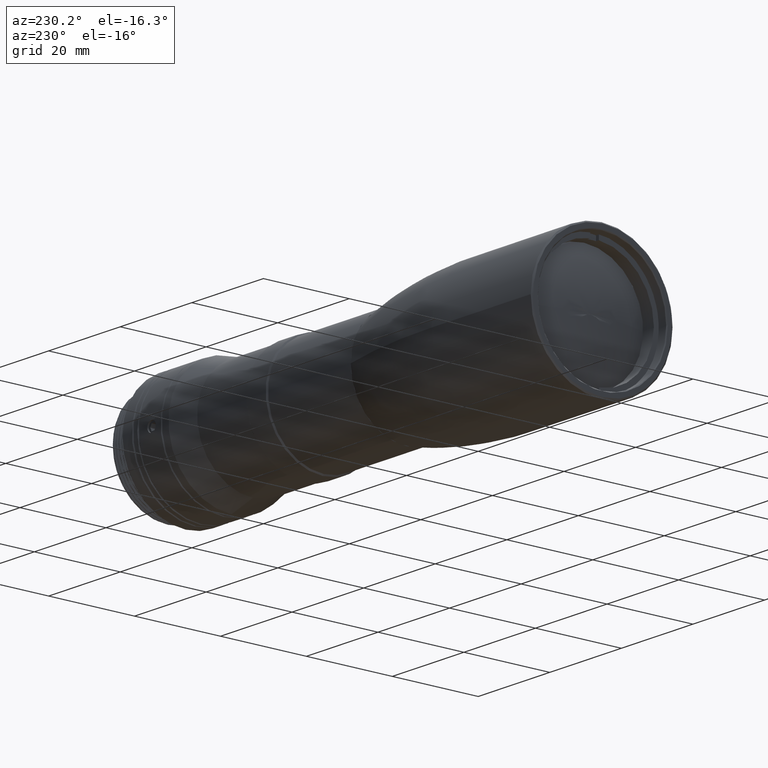
[diagram: clean part render]
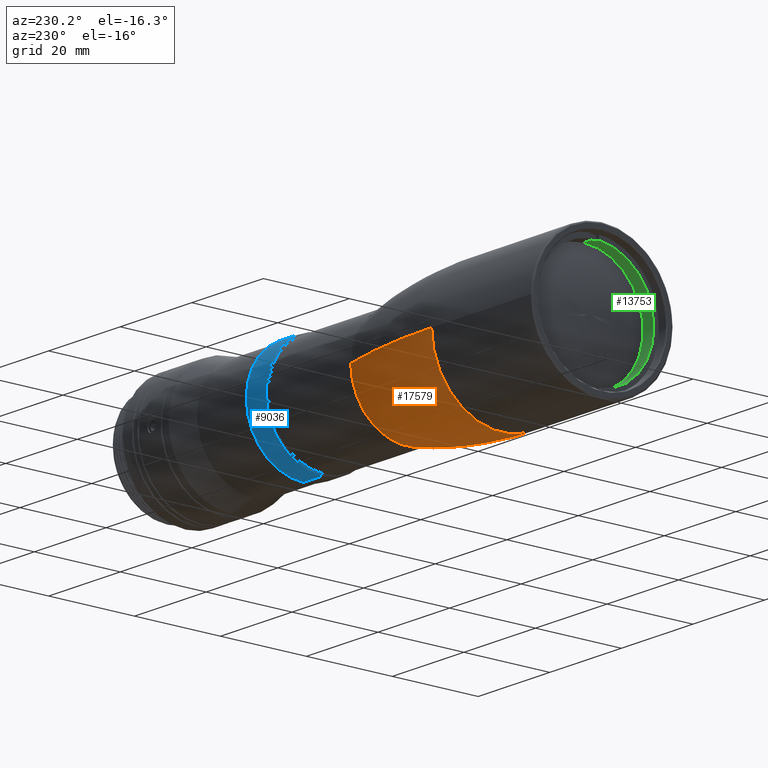
[diagram: same view with three faces highlighted in distinct colors, each labeled with its STEP entity id]
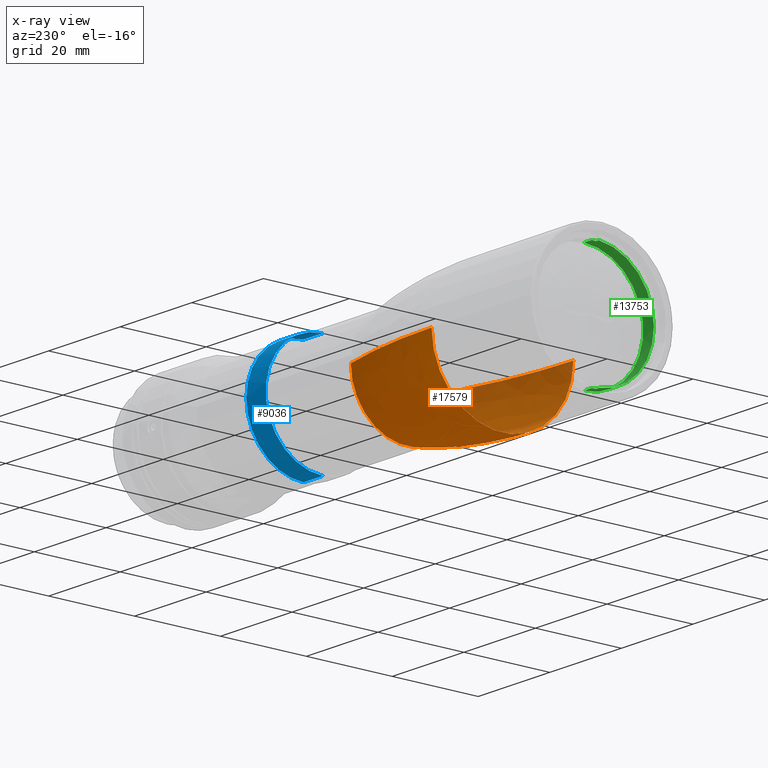
[diagram: x-ray of the same camera — body ghosted, the three highlighted faces saturated]
A machine part, auxiliary view with three faces highlighted in distinct colors.
The next image is the same camera in x-ray (body ghosted, the three faces saturated) — at least one of them is partly hidden behind the body in this view.
Their STEP definitions:

[orange] entity #17579 — the highlighted face is a freeform B-spline surface patch.
#745 = CIRCLE ( 'NONE', #16235, 12.99999999998295763 ) ;
#1101 = CARTESIAN_POINT ( 'NONE',  ( -17.73994872612158247, 7.418881607924976526E-05, -16.49999999981036680 ) ) ;
#1295 = AXIS2_PLACEMENT_3D ( 'NONE', #12156, #4920, #9211 ) ;
#1375 = CARTESIAN_POINT ( 'NONE',  ( 1.564449548753233078E-11, 12.99768836372662939, 0.2451473004023941027 ) ) ;
#1574 =( BOUNDED_SURFACE ( )  B_SPLINE_SURFACE ( 3, 3, ( 
 ( #9859, #14124, #2520, #12712, #11194, #14298, #12624 ),
 ( #8347, #15638, #18523, #1101, #11274, #8440, #5565 ),
 ( #14213, #18710, #2791, #12790, #12977, #4139, #5669 ),
 ( #9954, #4232, #3867, #15728, #2706, #8525, #1375 ) ),
 .UNSPECIFIED., .F., .F., .F. ) 
 B_SPLINE_SURFACE_WITH_KNOTS ( ( 4, 4 ),
 ( 4, 3, 4 ),
 ( 0.01928601221986778191, 0.9807118293951125887 ),
 ( 0.000000000000000000, 0.5000000000000000000, 1.000000000000000000 ),
 .UNSPECIFIED. ) 
 GEOMETRIC_REPRESENTATION_ITEM ( )  RATIONAL_B_SPLINE_SURFACE ( (
 ( 0.9996555249964316214, 0.7999973439067965542, 0.7999973439067965542, 0.9996555249964316214, 0.7999973439067965542, 0.7999973439067965542, 0.9996555249964316214),
 ( 0.9940439575587189935, 0.7955065578979462204, 0.7955065578979462204, 0.9940439575587189935, 0.7955065578979462204, 0.7955065578979462204, 0.9940439575587189935),
 ( 0.9940439449608713396, 0.7955065478162286485, 0.7955065478162286485, 0.9940439449608713396, 0.7955065478162286485, 0.7955065478162286485, 0.9940439449608713396),
 ( 0.9996554872028889926, 0.7999973136616441716, 0.7999973136616441716, 0.9996554872028889926, 0.7999973136616441716, 0.7999973136616441716, 0.9996554872028889926) ) ) 
 REPRESENTATION_ITEM ( '' )  SURFACE ( )  );
#1596 = CARTESIAN_POINT ( 'NONE',  ( -26.80000000002000249, -16.49999999965814013, -7.418881125470027326E-05 ) ) ;
#2520 = CARTESIAN_POINT ( 'NONE',  ( -26.80000000002445404, -9.810519168075346741, -16.50004411110079872 ) ) ;
#2706 = CARTESIAN_POINT ( 'NONE',  ( 1.207124785739666020E-11, 7.729616854188997799, -12.99996524549677268 ) ) ;
#2791 = CARTESIAN_POINT ( 'NONE',  ( -8.756185135891167093, -9.112930196523825188, -15.32678828184456066 ) ) ;
#3244 = DIRECTION ( 'NONE',  ( 0.000000000000000000, 0.000000000000000000, 1.000000000000000000 ) ) ;
#3867 = CARTESIAN_POINT ( 'NONE',  ( 1.207122910543800686E-11, -7.729499950599942437, -13.00003475419824106 ) ) ;
#4139 = CARTESIAN_POINT ( 'NONE',  ( -8.756185135889412052, 15.49587017389182186, -8.822354751262436068 ) ) ;
#4232 = CARTESIAN_POINT ( 'NONE',  ( 1.355956512471134765E-11, -13.14338110025917139, -7.483154839373264977 ) ) ;
#4674 = VERTEX_POINT ( 'NONE', #14380 ) ;
#4920 = DIRECTION ( 'NONE',  ( 2.697324574236714018E-13, -8.992583322630791736E-06, 0.9999999999595668987 ) ) ;
#5565 = CARTESIAN_POINT ( 'NONE',  ( -17.73994872611704210, 16.49706600012329005, 0.3111484966695011178 ) ) ;
#5613 = CARTESIAN_POINT ( 'NONE',  ( 0.000000000000000000, 0.000000000000000000, -9.621682753383029286E-14 ) ) ;
#5642 = AXIS2_PLACEMENT_3D ( 'NONE', #14668, #15901, #6044 ) ;
#5669 = CARTESIAN_POINT ( 'NONE',  ( -8.756185135886953574, 15.32402193308983662, 0.2890239020284853244 ) ) ;
#5709 = DIRECTION ( 'NONE',  ( 1.000000000000000000, 0.000000000000000000, -2.697785781550014780E-13 ) ) ;
#6044 = DIRECTION ( 'NONE',  ( 0.000000000000000000, -0.9999999999595666766, -8.992583580296964070E-06 ) ) ;
#6567 = CIRCLE ( 'NONE', #5642, 104.3557142859954041 ) ;
#6664 = VERTEX_POINT ( 'NONE', #15433 ) ;
#6776 = CARTESIAN_POINT ( 'NONE',  ( -26.79999958350422418, 16.49999999965814368, 7.418880885254002899E-05 ) ) ;
#7773 = AXIS2_PLACEMENT_3D ( 'NONE', #17616, #12085, #3244 ) ;
#8347 = CARTESIAN_POINT ( 'NONE',  ( -17.73994872611703855, -16.49706879748518062, 0.3110001454090028372 ) ) ;
#8440 = CARTESIAN_POINT ( 'NONE',  ( -17.73994872611969242, 16.68206911372453050, -9.497700358530945408 ) ) ;
#8525 = CARTESIAN_POINT ( 'NONE',  ( 1.355959701072054305E-11, 13.14344839262452602, -7.483036646115086121 ) ) ;
#8638 = EDGE_CURVE ( 'NONE', #4674, #6664, #745, .T. ) ;
#9211 = DIRECTION ( 'NONE',  ( 0.000000000000000000, -0.9999999999595666766, -8.992583322630791736E-06 ) ) ;
#9291 = CIRCLE ( 'NONE', #7773, 16.50000000000000000 ) ;
#9529 = EDGE_LOOP ( 'NONE', ( #16086, #10061, #17098, #14890 ) ) ;
#9530 = CIRCLE ( 'NONE', #1295, 104.3557142859954183 ) ;
#9859 = CARTESIAN_POINT ( 'NONE',  ( -26.80000000001992078, -16.49706879748678290, 0.3110001454114778574 ) ) ;
#9954 = CARTESIAN_POINT ( 'NONE',  ( 1.564446395505361514E-11, -12.99769056770872488, 0.2450304175910100746 ) ) ;
#10061 = ORIENTED_EDGE ( 'NONE', *, *, #17990, .T. ) ;
#11194 = CARTESIAN_POINT ( 'NONE',  ( -26.80000000002445404, 9.810667545707504544, -16.49995588851823669 ) ) ;
#11236 = EDGE_CURVE ( 'NONE', #16415, #4674, #6567, .T. ) ;
#11274 = CARTESIAN_POINT ( 'NONE',  ( -17.73994872612157536, 9.810667545706554193, -16.49995588851907868 ) ) ;
#11505 = DIRECTION ( 'NONE',  ( -2.697785781550014780E-13, 0.000000000000000000, -1.000000000000000000 ) ) ;
#12085 = DIRECTION ( 'NONE',  ( 1.000000000000000000, 0.000000000000000000, 0.000000000000000000 ) ) ;
#12156 = CARTESIAN_POINT ( 'NONE',  ( -26.80000000003841976, -87.85571428245970083, -0.0007900498237524424764 ) ) ;
#12624 = CARTESIAN_POINT ( 'NONE',  ( -26.80000000001992433, 16.49706600012489233, 0.3111484966719749168 ) ) ;
#12712 = CARTESIAN_POINT ( 'NONE',  ( -26.80000000002445759, 7.418881607859924396E-05, -16.49999999980951770 ) ) ;
#12790 = CARTESIAN_POINT ( 'NONE',  ( -8.756185135891168869, 6.891352953224933017E-05, -15.32674730714061617 ) ) ;
#12977 = CARTESIAN_POINT ( 'NONE',  ( -8.756185135891167093, 9.113068023582890476, -15.32670633243667524 ) ) ;
#14124 = CARTESIAN_POINT ( 'NONE',  ( -26.80000000002256044, -16.68198370418556920, -9.497850373049313788 ) ) ;
#14213 = CARTESIAN_POINT ( 'NONE',  ( -8.756185135886953574, -15.32402453154188215, 0.2888860994658917214 ) ) ;
#14298 = CARTESIAN_POINT ( 'NONE',  ( -26.80000000002256044, 16.68206911372615053, -9.497700358529424847 ) ) ;
#14380 = CARTESIAN_POINT ( 'NONE',  ( 1.410113344907664357E-11, -12.99999999947375251, -0.0001139606293409103856 ) ) ;
#14668 = CARTESIAN_POINT ( 'NONE',  ( -26.80000000003841265, 87.85571428245967240, 0.0007900498606580297865 ) ) ;
#14890 = ORIENTED_EDGE ( 'NONE', *, *, #8638, .F. ) ;
#15433 = CARTESIAN_POINT ( 'NONE',  ( 1.369529332775632716E-11, 12.99999999947402074, 0.0001139622336825249407 ) ) ;
#15638 = CARTESIAN_POINT ( 'NONE',  ( -17.73994872611968887, -16.68198370418395626, -9.497850373050837902 ) ) ;
#15728 = CARTESIAN_POINT ( 'NONE',  ( 1.207123848141733514E-11, 5.845179452791086379E-05, -12.99999999984750332 ) ) ;
#15862 = EDGE_CURVE ( 'NONE', #6664, #17848, #9530, .T. ) ;
#15901 = DIRECTION ( 'NONE',  ( 2.698431476603618851E-13, -8.992583580296964070E-06, 0.9999999999595668987 ) ) ;
#16086 = ORIENTED_EDGE ( 'NONE', *, *, #11236, .F. ) ;
#16235 = AXIS2_PLACEMENT_3D ( 'NONE', #5613, #5709, #11505 ) ;
#16415 = VERTEX_POINT ( 'NONE', #1596 ) ;
#17098 = ORIENTED_EDGE ( 'NONE', *, *, #15862, .F. ) ;
#17266 = FACE_OUTER_BOUND ( 'NONE', #9529, .T. ) ;
#17579 = ADVANCED_FACE ( 'NONE', ( #17266 ), #1574, .F. ) ;
#17616 = CARTESIAN_POINT ( 'NONE',  ( -26.80000000001999894, 0.000000000000000000, 0.000000000000000000 ) ) ;
#17848 = VERTEX_POINT ( 'NONE', #6776 ) ;
#17990 = EDGE_CURVE ( 'NONE', #16415, #17848, #9291, .T. ) ;
#18523 = CARTESIAN_POINT ( 'NONE',  ( -17.73994872612157536, -9.810519168074394614, -16.50004411110164426 ) ) ;
#18710 = CARTESIAN_POINT ( 'NONE',  ( -8.756185135889412052, -15.49579083750113107, -8.822494098816324737 ) ) ;

[blue] entity #9036 — the highlighted cylindrical surface (partial cylindrical patch) has radius 13.3 mm, axis along (1, -0, 0).
#89 = CARTESIAN_POINT ( 'NONE',  ( 23.41799999999955872, 0.000000000000000000, 0.000000000000000000 ) ) ;
#118 = CARTESIAN_POINT ( 'NONE',  ( 28.81800000000000139, 13.30000000000088178, 1.628780242866088029E-15 ) ) ;
#204 = DIRECTION ( 'NONE',  ( 1.000000000000000000, 0.000000000000000000, 0.000000000000000000 ) ) ;
#1183 = CARTESIAN_POINT ( 'NONE',  ( 28.81800000000000139, 1.628780242865979955E-15, 13.30000000000000071 ) ) ;
#1218 = DIRECTION ( 'NONE',  ( 1.000000000000000000, -0.000000000000000000, 0.000000000000000000 ) ) ;
#1599 = CARTESIAN_POINT ( 'NONE',  ( 28.81800000000000139, 0.000000000000000000, -13.30000000000000071 ) ) ;
#2539 = CIRCLE ( 'NONE', #13169, 13.30000000000000071 ) ;
#3763 = VECTOR ( 'NONE', #16466, 1000.000000000000000 ) ;
#4075 = ORIENTED_EDGE ( 'NONE', *, *, #7999, .F. ) ;
#4741 = DIRECTION ( 'NONE',  ( 0.000000000000000000, -1.000000000000000000, 0.000000000000000000 ) ) ;
#5497 = VERTEX_POINT ( 'NONE', #1599 ) ;
#6020 = DIRECTION ( 'NONE',  ( 0.000000000000000000, 0.000000000000000000, -1.000000000000000000 ) ) ;
#6218 = VECTOR ( 'NONE', #15659, 1000.000000000000000 ) ;
#6384 = VERTEX_POINT ( 'NONE', #1183 ) ;
#6543 = ORIENTED_EDGE ( 'NONE', *, *, #8298, .F. ) ;
#6583 = AXIS2_PLACEMENT_3D ( 'NONE', #8933, #14811, #4741 ) ;
#7117 = LINE ( 'NONE', #12646, #6218 ) ;
#7595 = ORIENTED_EDGE ( 'NONE', *, *, #14971, .F. ) ;
#7887 = CARTESIAN_POINT ( 'NONE',  ( 23.41799999999955872, 0.000000000000000000, -13.30000000000044302 ) ) ;
#7999 = EDGE_CURVE ( 'NONE', #5497, #11227, #2539, .T. ) ;
#8282 = FACE_OUTER_BOUND ( 'NONE', #15791, .T. ) ;
#8298 = EDGE_CURVE ( 'NONE', #17377, #5497, #9163, .T. ) ;
#8378 = DIRECTION ( 'NONE',  ( 0.000000000000000000, 0.000000000000000000, -1.000000000000000000 ) ) ;
#8933 = CARTESIAN_POINT ( 'NONE',  ( 28.81800000000000139, 0.000000000000000000, 0.000000000000000000 ) ) ;
#9036 = ADVANCED_FACE ( 'NONE', ( #8282 ), #15668, .T. ) ;
#9163 = LINE ( 'NONE', #14937, #3763 ) ;
#11227 = VERTEX_POINT ( 'NONE', #118 ) ;
#12053 = ORIENTED_EDGE ( 'NONE', *, *, #17044, .T. ) ;
#12339 = CIRCLE ( 'NONE', #6583, 13.30000000000000071 ) ;
#12646 = CARTESIAN_POINT ( 'NONE',  ( 23.41799999999999571, 1.628780242865979955E-15, 13.30000000000000071 ) ) ;
#13169 = AXIS2_PLACEMENT_3D ( 'NONE', #17135, #14094, #18411 ) ;
#13566 = ORIENTED_EDGE ( 'NONE', *, *, #15634, .T. ) ;
#14094 = DIRECTION ( 'NONE',  ( 1.000000000000000000, 0.000000000000000000, 0.000000000000000000 ) ) ;
#14159 = VERTEX_POINT ( 'NONE', #17340 ) ;
#14667 = AXIS2_PLACEMENT_3D ( 'NONE', #89, #204, #6020 ) ;
#14811 = DIRECTION ( 'NONE',  ( 1.000000000000000000, 0.000000000000000000, 0.000000000000000000 ) ) ;
#14937 = CARTESIAN_POINT ( 'NONE',  ( 23.41799999999999571, 0.000000000000000000, -13.30000000000000071 ) ) ;
#14971 = EDGE_CURVE ( 'NONE', #11227, #6384, #12339, .T. ) ;
#15566 = CARTESIAN_POINT ( 'NONE',  ( 23.41799999999999571, 0.000000000000000000, 0.000000000000000000 ) ) ;
#15634 = EDGE_CURVE ( 'NONE', #17377, #14159, #17086, .T. ) ;
#15659 = DIRECTION ( 'NONE',  ( 1.000000000000000000, -0.000000000000000000, 0.000000000000000000 ) ) ;
#15668 = CYLINDRICAL_SURFACE ( 'NONE', #16509, 13.30000000000000071 ) ;
#15791 = EDGE_LOOP ( 'NONE', ( #13566, #12053, #7595, #4075, #6543 ) ) ;
#16466 = DIRECTION ( 'NONE',  ( 1.000000000000000000, -0.000000000000000000, 0.000000000000000000 ) ) ;
#16509 = AXIS2_PLACEMENT_3D ( 'NONE', #15566, #1218, #8378 ) ;
#17044 = EDGE_CURVE ( 'NONE', #14159, #6384, #7117, .T. ) ;
#17086 = CIRCLE ( 'NONE', #14667, 13.30000000000044302 ) ;
#17135 = CARTESIAN_POINT ( 'NONE',  ( 28.81800000000000139, 0.000000000000000000, 0.000000000000000000 ) ) ;
#17340 = CARTESIAN_POINT ( 'NONE',  ( 23.41799999999955872, 1.628780242866034190E-15, 13.30000000000044302 ) ) ;
#17377 = VERTEX_POINT ( 'NONE', #7887 ) ;
#18411 = DIRECTION ( 'NONE',  ( 0.000000000000000000, -1.000000000000000000, 0.000000000000000000 ) ) ;

[green] entity #13753 — the highlighted cylindrical surface (partial cylindrical patch) has radius 13.8 mm, axis along (1, -0, 0).
#445 = LINE ( 'NONE', #6636, #5905 ) ;
#1030 = CARTESIAN_POINT ( 'NONE',  ( -52.53999999999999915, 1.690012582823347529E-15, 13.80000000000000071 ) ) ;
#1041 = DIRECTION ( 'NONE',  ( 1.000000000000000000, -0.000000000000000000, 0.000000000000000000 ) ) ;
#1066 = CARTESIAN_POINT ( 'NONE',  ( -52.53999999999999915, -0.9999999999999347189, 13.76372042726820943 ) ) ;
#1525 = CARTESIAN_POINT ( 'NONE',  ( -49.53999999999999915, 0.000000000000000000, 0.000000000000000000 ) ) ;
#1772 = CYLINDRICAL_SURFACE ( 'NONE', #17485, 13.80000000000000071 ) ;
#1935 = DIRECTION ( 'NONE',  ( -1.000000000000000000, -0.000000000000000000, -0.000000000000000000 ) ) ;
#2005 = VECTOR ( 'NONE', #5909, 1000.000000000000000 ) ;
#2192 = EDGE_CURVE ( 'NONE', #4868, #9138, #14197, .T. ) ;
#2372 = DIRECTION ( 'NONE',  ( 1.000000000000000000, -0.000000000000000000, 0.000000000000000000 ) ) ;
#3097 = CARTESIAN_POINT ( 'NONE',  ( -52.53999999999999915, 0.000000000000000000, 0.000000000000000000 ) ) ;
#3482 = DIRECTION ( 'NONE',  ( 1.000000000000000000, 0.000000000000000000, 0.000000000000000000 ) ) ;
#3524 = VECTOR ( 'NONE', #2372, 1000.000000000000000 ) ;
#3653 = VERTEX_POINT ( 'NONE', #5206 ) ;
#4070 = DIRECTION ( 'NONE',  ( 0.000000000000000000, 0.000000000000000000, -1.000000000000000000 ) ) ;
#4266 = DIRECTION ( 'NONE',  ( 0.000000000000000000, 0.000000000000000000, -1.000000000000000000 ) ) ;
#4611 = EDGE_LOOP ( 'NONE', ( #13312, #10736, #15697, #9253, #11433, #14120, #15524, #8667 ) ) ;
#4868 = VERTEX_POINT ( 'NONE', #1066 ) ;
#4978 = LINE ( 'NONE', #15239, #6244 ) ;
#5206 = CARTESIAN_POINT ( 'NONE',  ( -51.73999999999999488, 1.690012582823347529E-15, 13.80000000000000071 ) ) ;
#5381 = EDGE_CURVE ( 'NONE', #3653, #14230, #14066, .T. ) ;
#5705 = DIRECTION ( 'NONE',  ( 0.000000000000000000, 0.000000000000000000, -1.000000000000000000 ) ) ;
#5905 = VECTOR ( 'NONE', #3482, 1000.000000000000000 ) ;
#5909 = DIRECTION ( 'NONE',  ( 1.000000000000000000, -0.000000000000000000, 0.000000000000000000 ) ) ;
#6034 = AXIS2_PLACEMENT_3D ( 'NONE', #15430, #6706, #5705 ) ;
#6171 = CARTESIAN_POINT ( 'NONE',  ( -51.73999999999999488, 0.000000000000000000, -13.80000000000000071 ) ) ;
#6209 = AXIS2_PLACEMENT_3D ( 'NONE', #10075, #17393, #4266 ) ;
#6244 = VECTOR ( 'NONE', #1935, 1000.000000000000000 ) ;
#6245 = EDGE_CURVE ( 'NONE', #9138, #13609, #445, .T. ) ;
#6504 = EDGE_CURVE ( 'NONE', #14230, #4868, #4978, .T. ) ;
#6636 = CARTESIAN_POINT ( 'NONE',  ( -51.03999999999999915, -0.9999999999998701039, -13.76372042726821476 ) ) ;
#6706 = DIRECTION ( 'NONE',  ( 1.000000000000000000, -0.000000000000000000, 0.000000000000000000 ) ) ;
#7147 = CARTESIAN_POINT ( 'NONE',  ( -52.53999999999999915, 0.000000000000000000, -13.80000000000000071 ) ) ;
#8383 = CARTESIAN_POINT ( 'NONE',  ( -51.73999999999999488, 0.000000000000000000, 0.000000000000000000 ) ) ;
#8667 = ORIENTED_EDGE ( 'NONE', *, *, #6504, .F. ) ;
#8774 = LINE ( 'NONE', #7147, #2005 ) ;
#9138 = VERTEX_POINT ( 'NONE', #12526 ) ;
#9253 = ORIENTED_EDGE ( 'NONE', *, *, #14445, .F. ) ;
#9523 = EDGE_CURVE ( 'NONE', #13609, #18508, #14371, .T. ) ;
#9698 = VERTEX_POINT ( 'NONE', #17969 ) ;
#10075 = CARTESIAN_POINT ( 'NONE',  ( -51.73999999999999488, 0.000000000000000000, 0.000000000000000000 ) ) ;
#10146 = VERTEX_POINT ( 'NONE', #17058 ) ;
#10736 = ORIENTED_EDGE ( 'NONE', *, *, #14771, .T. ) ;
#11433 = ORIENTED_EDGE ( 'NONE', *, *, #9523, .F. ) ;
#11847 = CARTESIAN_POINT ( 'NONE',  ( -51.73999999999999488, -0.9999999999999349409, 13.76372042726821121 ) ) ;
#12526 = CARTESIAN_POINT ( 'NONE',  ( -52.53999999999999915, -0.9999999999999349409, -13.76372042726821121 ) ) ;
#13312 = ORIENTED_EDGE ( 'NONE', *, *, #5381, .F. ) ;
#13363 = FACE_OUTER_BOUND ( 'NONE', #4611, .T. ) ;
#13510 = CIRCLE ( 'NONE', #18394, 13.80000000000000071 ) ;
#13609 = VERTEX_POINT ( 'NONE', #15871 ) ;
#13638 = EDGE_CURVE ( 'NONE', #9698, #10146, #13510, .T. ) ;
#13753 = ADVANCED_FACE ( 'NONE', ( #13363 ), #1772, .F. ) ;
#14066 = CIRCLE ( 'NONE', #16512, 13.80000000000000071 ) ;
#14120 = ORIENTED_EDGE ( 'NONE', *, *, #6245, .F. ) ;
#14197 = CIRCLE ( 'NONE', #6034, 13.80000000000000071 ) ;
#14230 = VERTEX_POINT ( 'NONE', #11847 ) ;
#14371 = CIRCLE ( 'NONE', #6209, 13.80000000000000071 ) ;
#14445 = EDGE_CURVE ( 'NONE', #18508, #9698, #8774, .T. ) ;
#14604 = DIRECTION ( 'NONE',  ( 0.000000000000000000, 0.000000000000000000, -1.000000000000000000 ) ) ;
#14771 = EDGE_CURVE ( 'NONE', #3653, #10146, #18268, .T. ) ;
#15239 = CARTESIAN_POINT ( 'NONE',  ( -51.03999999999999915, -0.9999999999998698819, 13.76372042726821476 ) ) ;
#15430 = CARTESIAN_POINT ( 'NONE',  ( -52.53999999999999915, 0.000000000000000000, 0.000000000000000000 ) ) ;
#15524 = ORIENTED_EDGE ( 'NONE', *, *, #2192, .F. ) ;
#15697 = ORIENTED_EDGE ( 'NONE', *, *, #13638, .F. ) ;
#15871 = CARTESIAN_POINT ( 'NONE',  ( -51.73999999999999488, -0.9999999999999349409, -13.76372042726820943 ) ) ;
#15986 = DIRECTION ( 'NONE',  ( 0.000000000000000000, 0.000000000000000000, -1.000000000000000000 ) ) ;
#16512 = AXIS2_PLACEMENT_3D ( 'NONE', #8383, #1041, #4070 ) ;
#17058 = CARTESIAN_POINT ( 'NONE',  ( -49.53999999999999915, 1.690012582823347529E-15, 13.80000000000000071 ) ) ;
#17318 = DIRECTION ( 'NONE',  ( -1.000000000000000000, 0.000000000000000000, -0.000000000000000000 ) ) ;
#17393 = DIRECTION ( 'NONE',  ( 1.000000000000000000, -0.000000000000000000, 0.000000000000000000 ) ) ;
#17467 = DIRECTION ( 'NONE',  ( 1.000000000000000000, -0.000000000000000000, 0.000000000000000000 ) ) ;
#17485 = AXIS2_PLACEMENT_3D ( 'NONE', #3097, #17467, #14604 ) ;
#17969 = CARTESIAN_POINT ( 'NONE',  ( -49.53999999999999915, 0.000000000000000000, -13.80000000000000071 ) ) ;
#18268 = LINE ( 'NONE', #1030, #3524 ) ;
#18394 = AXIS2_PLACEMENT_3D ( 'NONE', #1525, #17318, #15986 ) ;
#18508 = VERTEX_POINT ( 'NONE', #6171 ) ;